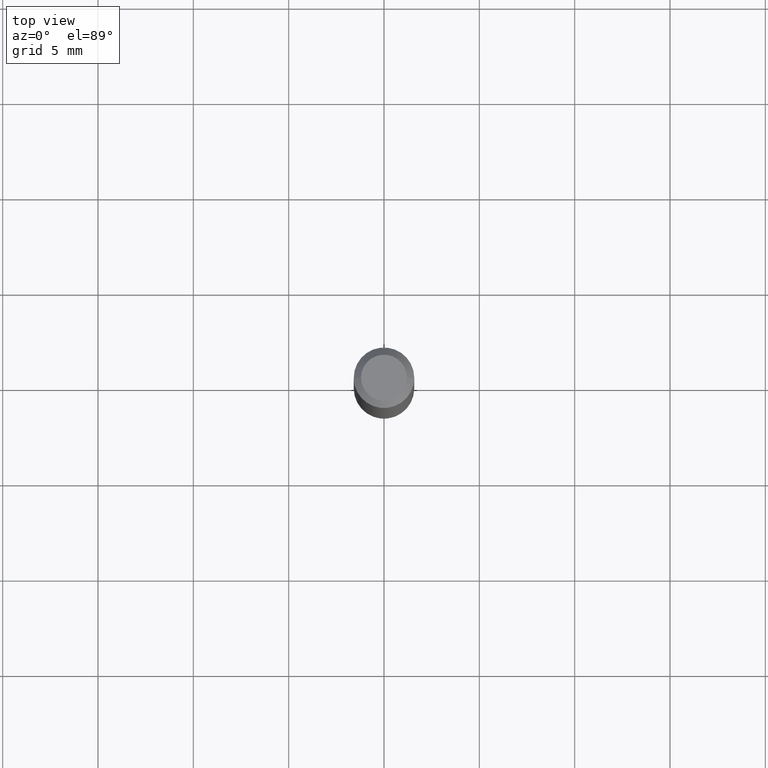
[diagram: clean part render]
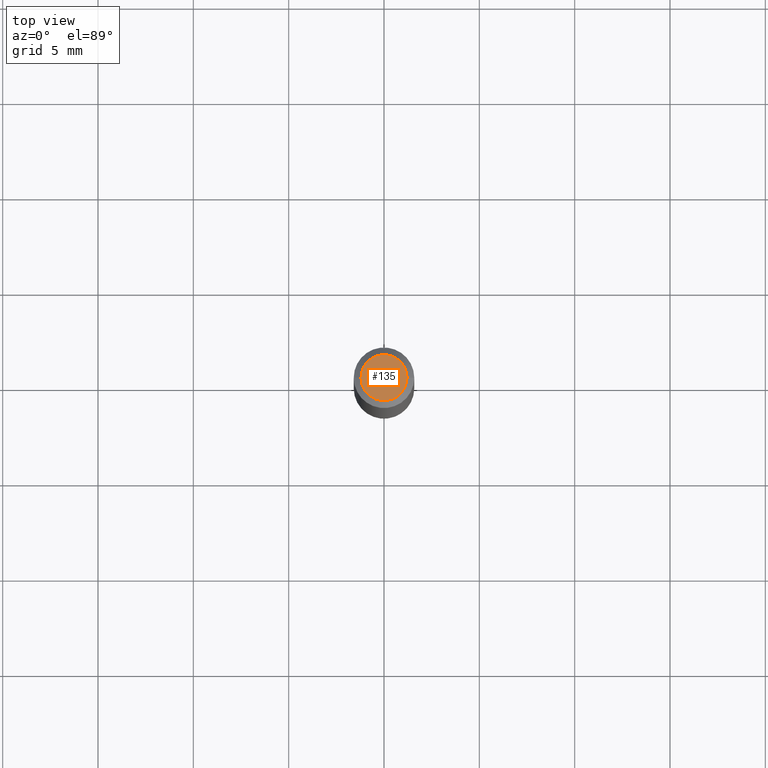
[diagram: same view with one face highlighted and labeled with its STEP entity id]
A machine part, top view. The second image highlights one B-rep face of the part: STEP entity #135.
In plain terms, the highlighted planar face has unit normal (0, -0, -1).
Its self-contained STEP definition (entity closure, byte-faithful):
#15 = DIRECTION ( 'NONE',  ( 2.438088387897960049E-29, -3.491481338843145188E-15, -1.000000000000000000 ) ) ;
#21 = CARTESIAN_POINT ( 'NONE',  ( 0.04749999999999999362, -4.035134999187566790E-16, 6.443424916547846258E-16 ) ) ;
#49 = EDGE_CURVE ( 'NONE', #73, #232, #236, .T. ) ;
#66 = AXIS2_PLACEMENT_3D ( 'NONE', #291, #398, #330 ) ;
#73 = VERTEX_POINT ( 'NONE', #76 ) ;
#76 = CARTESIAN_POINT ( 'NONE',  ( -0.04749999999999999362, 3.578768372314221846E-16, 6.443424916547796954E-16 ) ) ;
#96 = EDGE_LOOP ( 'NONE', ( #382, #384 ) ) ;
#135 = ADVANCED_FACE ( 'NONE', ( #333 ), #287, .F. ) ;
#148 = DIRECTION ( 'NONE',  ( 1.000000000000000000, -6.982962677686267499E-15, 4.852736867747366768E-29 ) ) ;
#149 = DIRECTION ( 'NONE',  ( -1.000000000000000000, 6.982962677686265922E-15, -4.876176775795935793E-29 ) ) ;
#211 = AXIS2_PLACEMENT_3D ( 'NONE', #260, #15, #149 ) ;
#214 = EDGE_CURVE ( 'NONE', #232, #73, #256, .T. ) ;
#217 = CARTESIAN_POINT ( 'NONE',  ( -1.575719463841376315E-44, 2.249709785436367094E-30, 6.443424916547820620E-16 ) ) ;
#232 = VERTEX_POINT ( 'NONE', #21 ) ;
#236 = CIRCLE ( 'NONE', #66, 0.04749999999999999362 ) ;
#253 = DIRECTION ( 'NONE',  ( -2.445468806185136597E-29, 3.491481338843145583E-15, 1.000000000000000000 ) ) ;
#256 = CIRCLE ( 'NONE', #342, 0.04749999999999999362 ) ;
#260 = CARTESIAN_POINT ( 'NONE',  ( 3.316907271900976096E-16, 0.04749999999999999362, 1.563258822323416346E-16 ) ) ;
#287 = PLANE ( 'NONE',  #211 ) ;
#291 = CARTESIAN_POINT ( 'NONE',  ( -1.575719463841376315E-44, 2.249709785436367094E-30, 6.443424916547820620E-16 ) ) ;
#330 = DIRECTION ( 'NONE',  ( 1.000000000000000000, -6.982962677686267499E-15, 4.852736867747366768E-29 ) ) ;
#333 = FACE_OUTER_BOUND ( 'NONE', #96, .T. ) ;
#342 = AXIS2_PLACEMENT_3D ( 'NONE', #217, #253, #148 ) ;
#382 = ORIENTED_EDGE ( 'NONE', *, *, #49, .T. ) ;
#384 = ORIENTED_EDGE ( 'NONE', *, *, #214, .T. ) ;
#398 = DIRECTION ( 'NONE',  ( -2.445468806185136597E-29, 3.491481338843145583E-15, 1.000000000000000000 ) ) ;